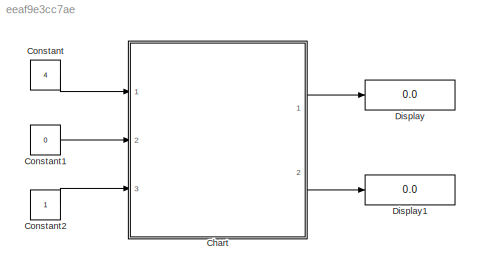
MODEL slx_eeaf9e3cc7ae
KIND model
CONFIG AbsTol = auto
CONFIG FixedStep = auto
CONFIG MaxStep = auto
CONFIG MinStep = auto
CONFIG RelTol = 1e-3
CONFIG SampleTimeConstraint = Unconstrained
CONFIG Solver = VariableStepAuto
CONFIG SolverMode = Auto
CONFIG SolverName = VariableStepAuto
CONFIG StartTime = 0.0
CONFIG StopTime = inf
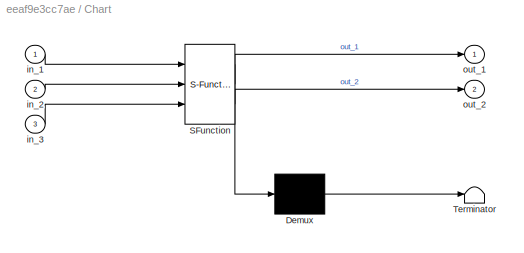
BLOCK [SubSystem] Chart
  ErrorFcn = Stateflow.Translate.translate
  PermitHierarchicalResolution = ExplicitOnly
  Ports = [3, 2]
  RequestExecContextInheritance = off
  SFBlockType = Chart
  TreatAsAtomicUnit = on
  Variant = off
BLOCK [Demux] Chart/ Demux 
  Outputs = 1
  Ports = [1, 1]
BLOCK [S-Function] Chart/ SFunction 
  EnableBusSupport = on
  FunctionName = sf_sfun
  PortCounts = [3 3]
  Ports = [3, 3]
  SFunctionDeploymentMode = off
  Tag = Stateflow S-Function kontrollflussdiagramm 3
BLOCK [Terminator] Chart/ Terminator 
BLOCK [Inport] Chart/in_1
  IconDisplay = Port number
BLOCK [Inport] Chart/in_2
  IconDisplay = Port number
  Port = 2
BLOCK [Inport] Chart/in_3
  IconDisplay = Port number
  Port = 3
BLOCK [Outport] Chart/out_1
  IconDisplay = Port number
BLOCK [Outport] Chart/out_2
  IconDisplay = Port number
  Port = 2
BLOCK [Constant] Constant
  Value = 4
BLOCK [Constant] Constant1
  Value = 0
BLOCK [Constant] Constant2
BLOCK [Display] Display
  Decimation = 1
  Ports = [1]
BLOCK [Display] Display1
  Decimation = 1
  Ports = [1]
LINE Chart:1 -> Display:1
LINE Chart:2 -> Display1:1
LINE Constant1:1 -> Chart:2
LINE Constant2:1 -> Chart:3
LINE Constant:1 -> Chart:1
CHART Chart states=0 transitions=8
